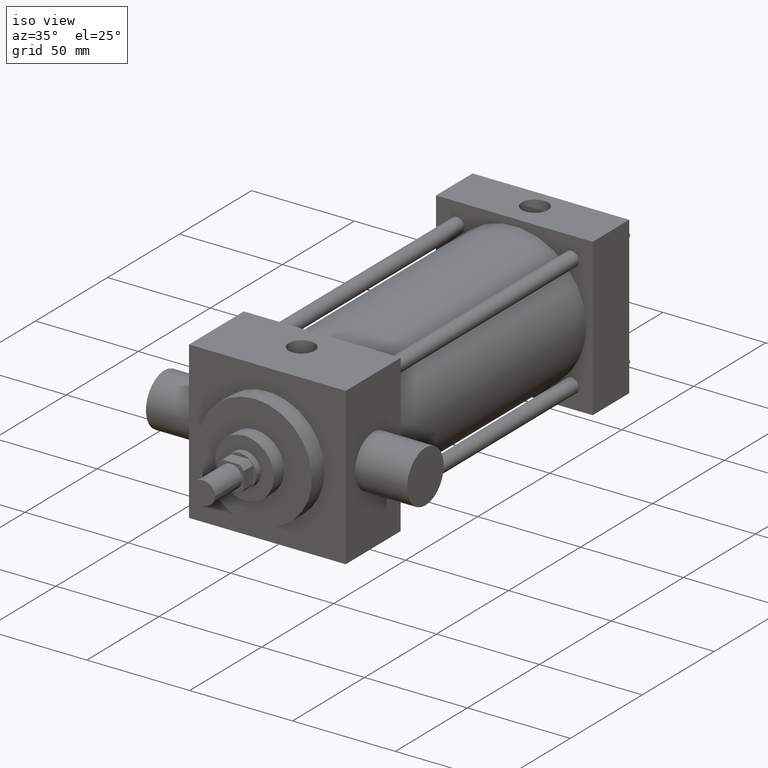
[diagram: clean part render]
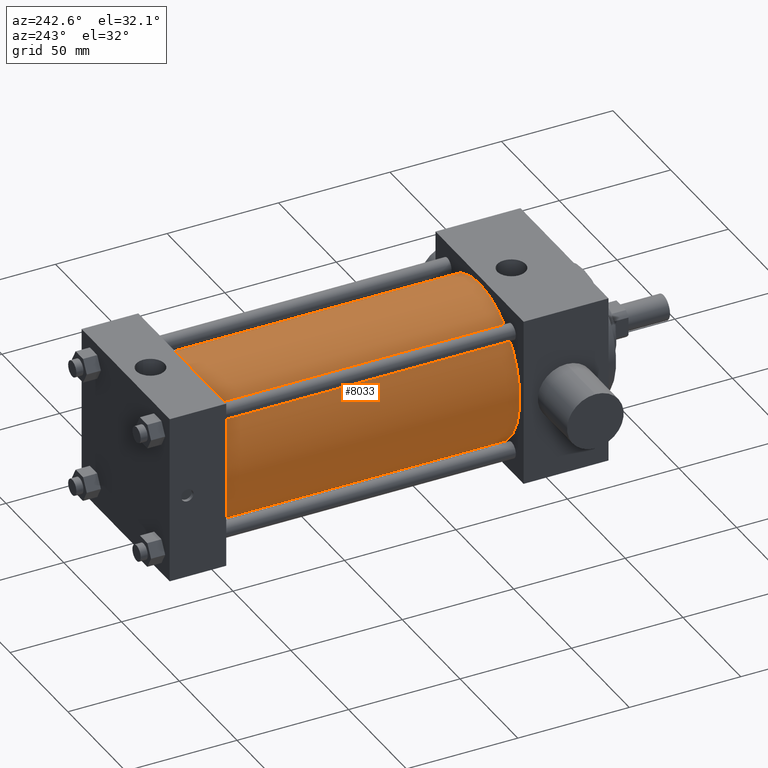
[diagram: tour spotlight — one face highlighted and labeled with its STEP entity id]
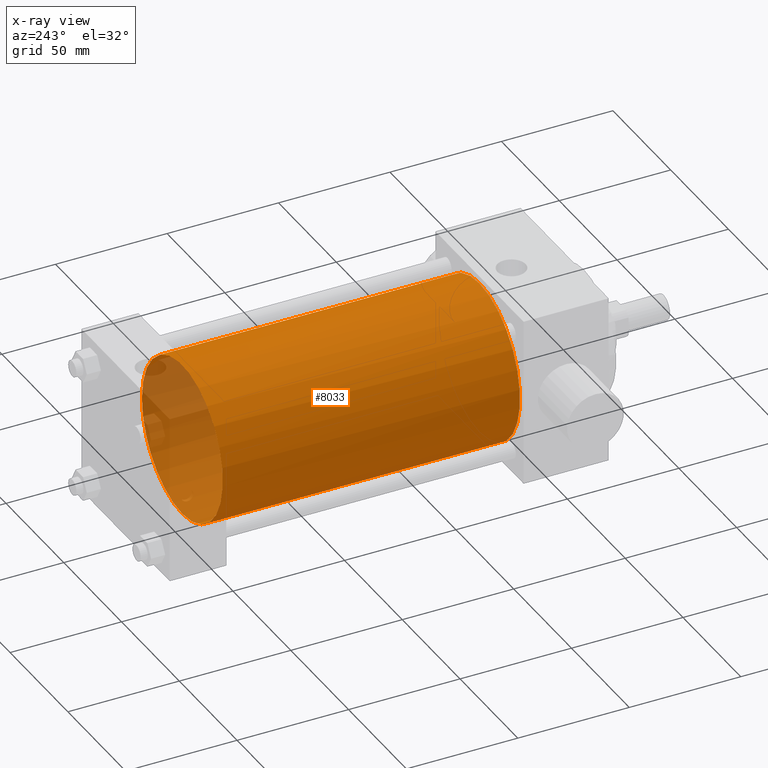
[diagram: x-ray of the same camera — body ghosted, this tour face saturated]
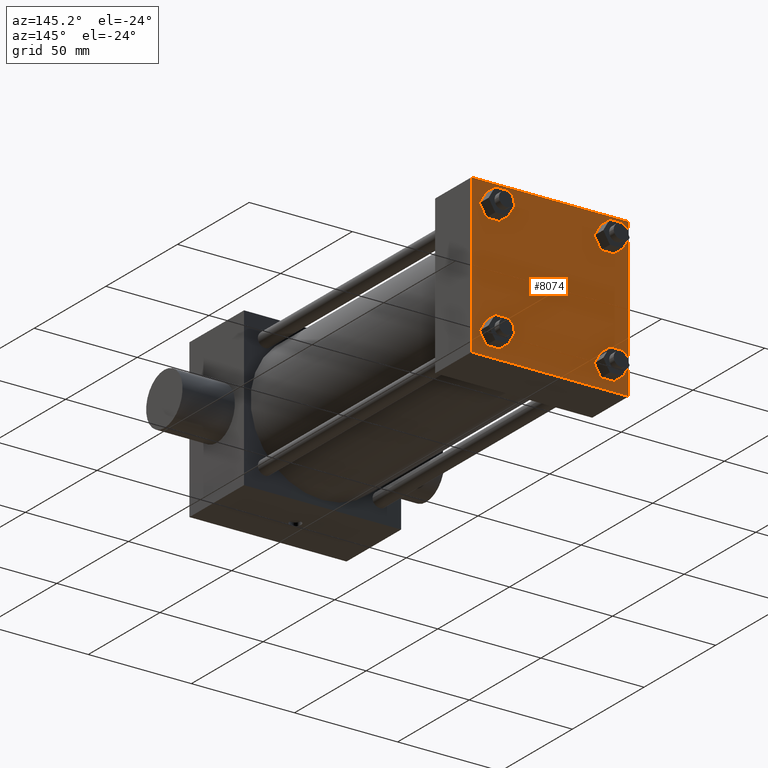
[diagram: tour spotlight — one face highlighted and labeled with its STEP entity id]
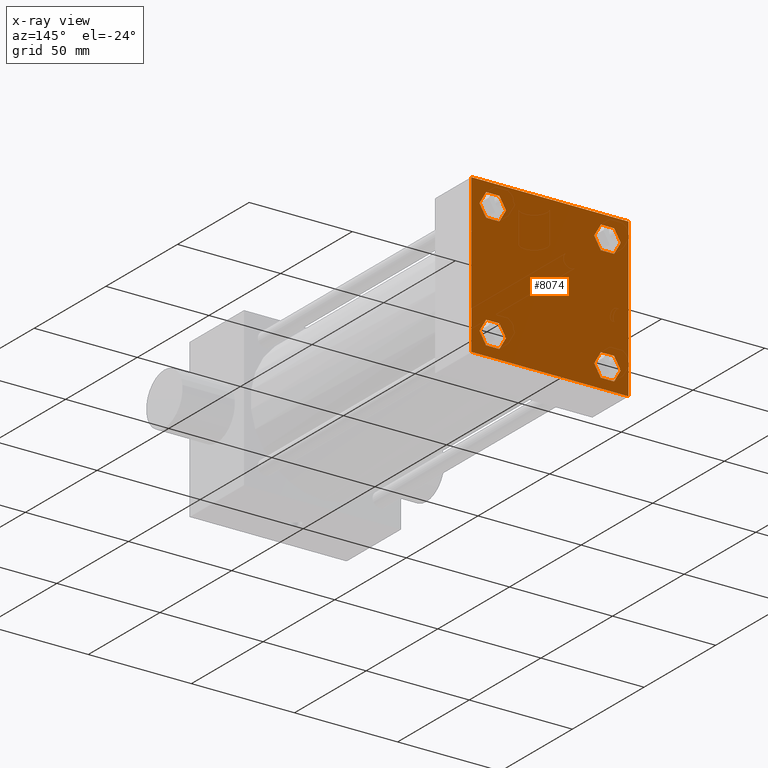
[diagram: x-ray of the same camera — body ghosted, this tour face saturated]
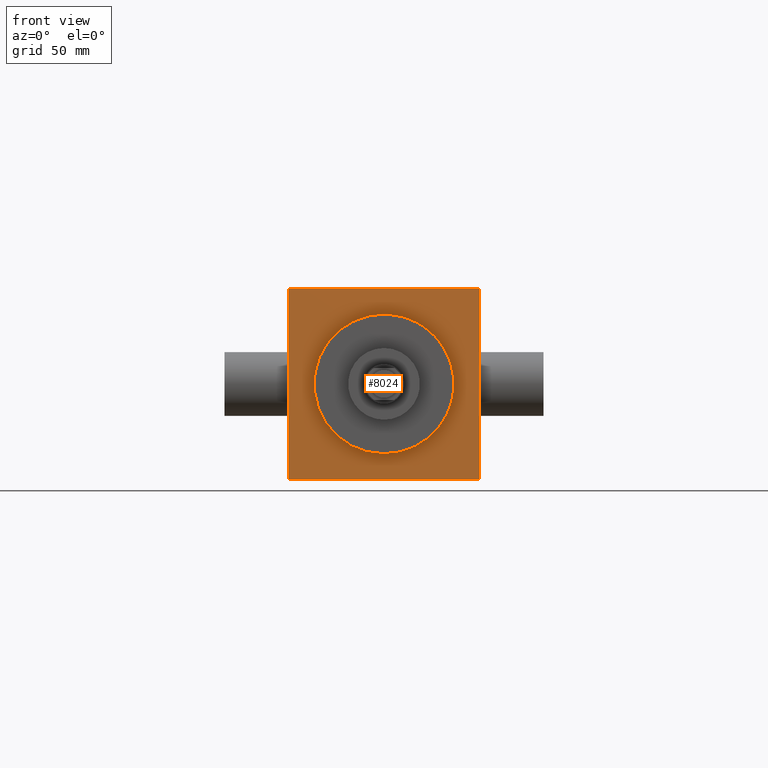
[diagram: tour spotlight — one face highlighted and labeled with its STEP entity id]
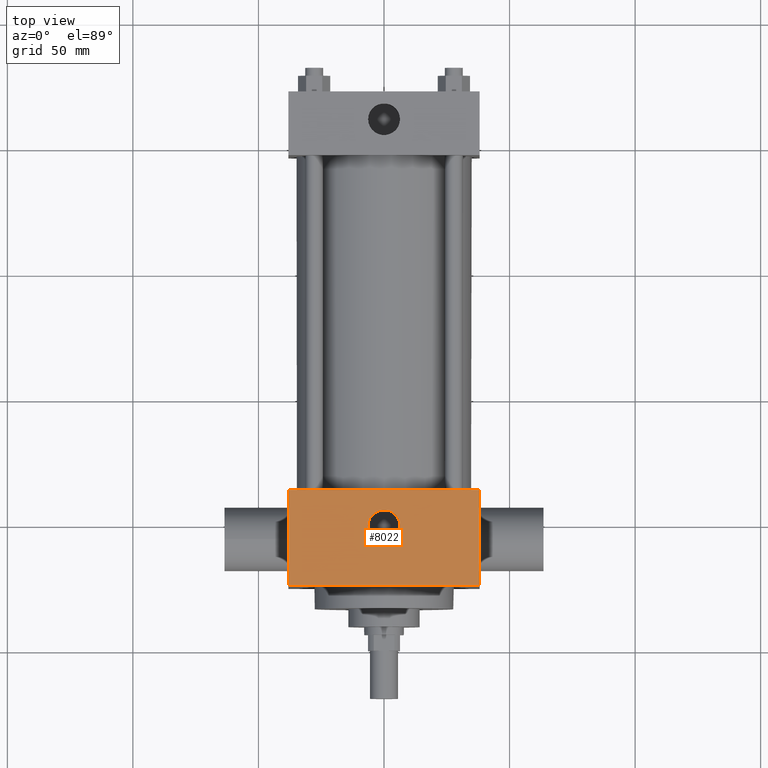
[diagram: tour spotlight — one face highlighted and labeled with its STEP entity id]
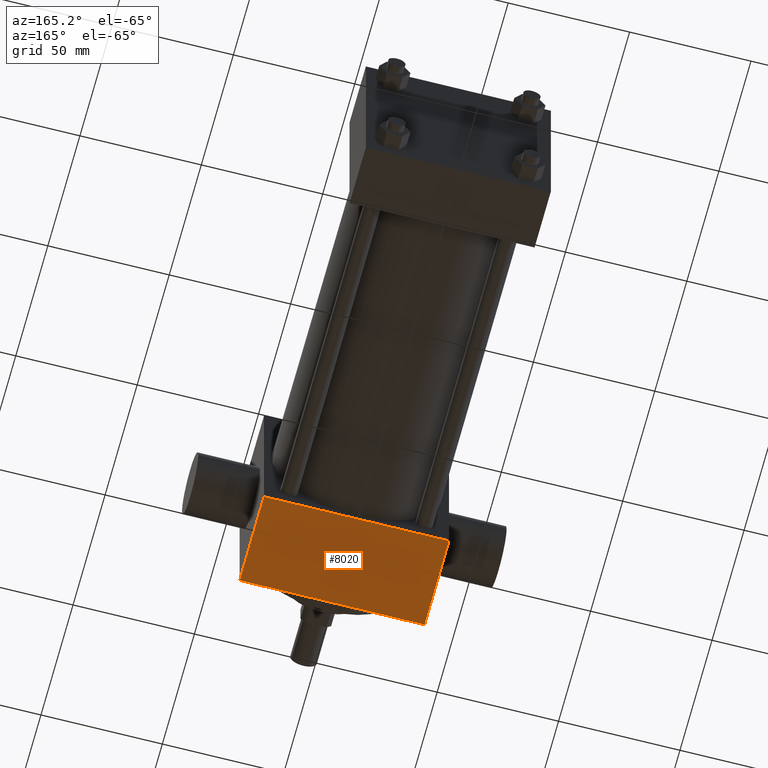
[diagram: tour spotlight — one face highlighted and labeled with its STEP entity id]
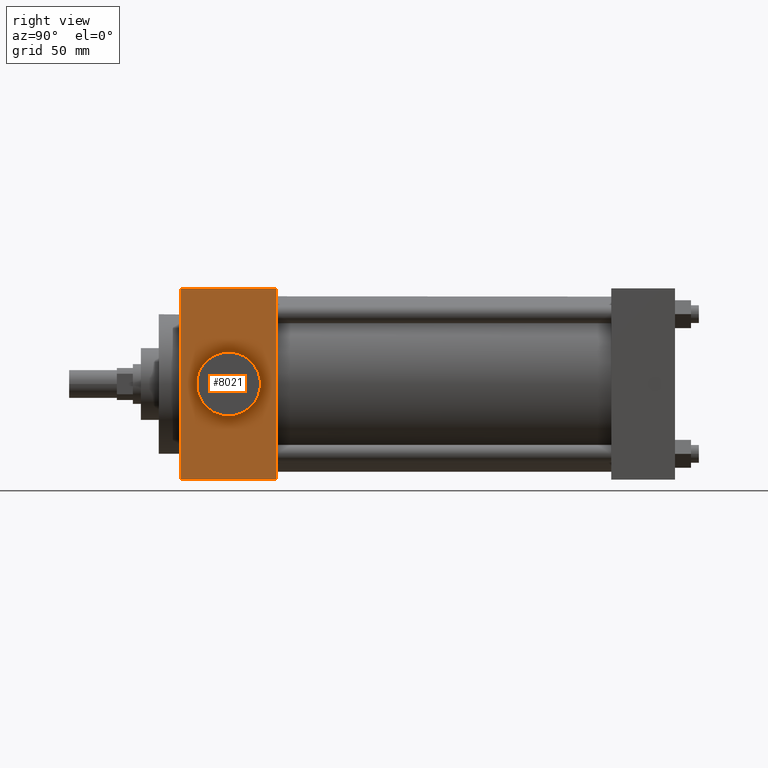
[diagram: tour spotlight — one face highlighted and labeled with its STEP entity id]
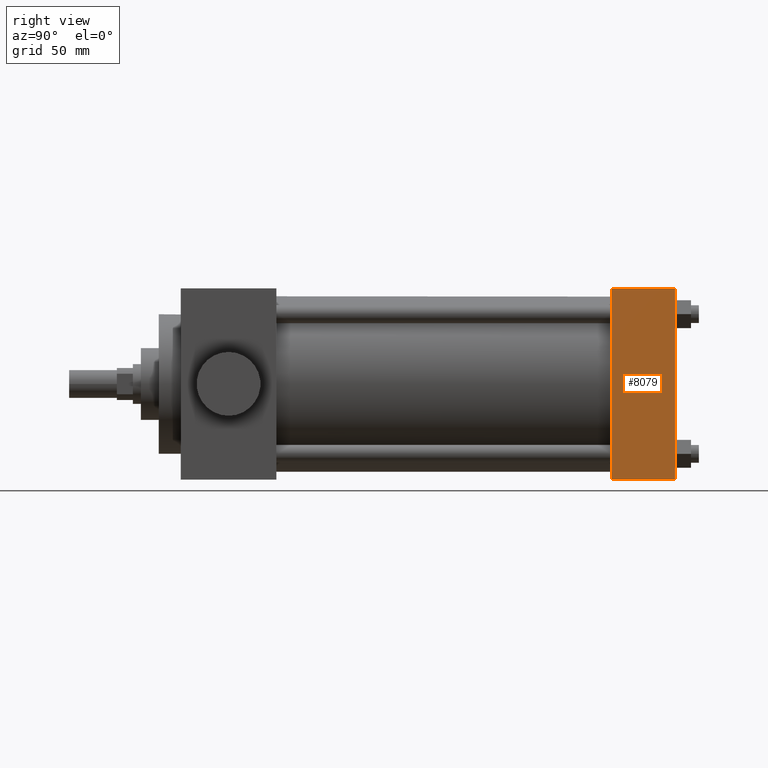
[diagram: tour spotlight — one face highlighted and labeled with its STEP entity id]
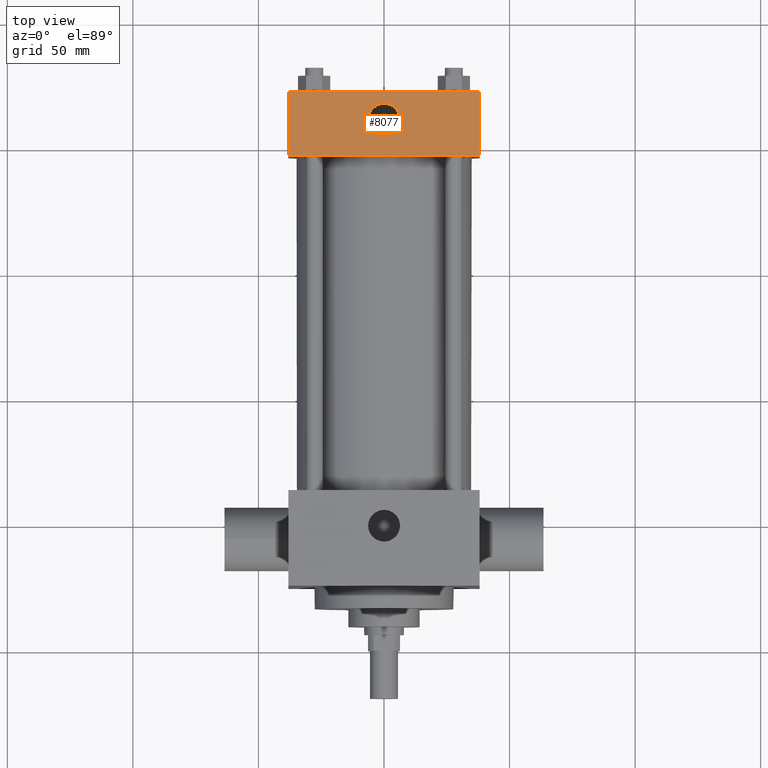
[diagram: tour spotlight — one face highlighted and labeled with its STEP entity id]
A machine part: a face-by-face anatomy tour. The part has 86 B-rep faces; the first image is the clean iso view, then the 8 largest visible faces are spotlighted one at a time (largest first), each with its STEP entity span.

Face 1 — auxiliary view, entity #8033. An x-ray twin of the same camera follows (body ghosted, this face saturated) — the face is partly hidden behind the body. In plain terms, the highlighted cylindrical surface (bore or boss wall) has radius 34.925 mm, axis along (0, -1, 0).
Definition (entity closure, byte-faithful):
#579=EDGE_CURVE('',#585,#585,#580,.T.);
#580=CIRCLE('',#581,3.492500000E+001);
#581=AXIS2_PLACEMENT_3D('',#582,#583,#584);
#582=CARTESIAN_POINT('',(0.000000000E+000,6.350000000E+001,0.000000000E+000));
#583=DIRECTION('',(0.0E+000,-1.0E+000,0.0E+000));
#584=DIRECTION('',(0.0E+000,0.0E+000,-1.0E+000));
#585=VERTEX_POINT('',#586);
#586=CARTESIAN_POINT('',(0.000000000E+000,6.350000000E+001,-3.492500000E+001));
#1344=FACE_OUTER_BOUND('',#1346,.T.);
#1345=FACE_BOUND('',#1347,.T.);
#1346=EDGE_LOOP('',(#1348));
#1347=EDGE_LOOP('',(#1357));
#1348=ORIENTED_EDGE('',*,*,#1349,.F.);
#1349=EDGE_CURVE('',#1355,#1355,#1350,.T.);
#1350=CIRCLE('',#1351,3.492500000E+001);
#1351=AXIS2_PLACEMENT_3D('',#1352,#1353,#1354);
#1352=CARTESIAN_POINT('',(0.000000000E+000,1.968500000E+002,0.000000000E+000));
#1353=DIRECTION('',(0.0E+000,1.0E+000,0.0E+000));
#1354=DIRECTION('',(1.0E+000,0.0E+000,0.0E+000));
#1355=VERTEX_POINT('',#1356);
#1356=CARTESIAN_POINT('',(3.492500000E+001,1.968500000E+002,0.000000000E+000));
#1357=ORIENTED_EDGE('',*,*,#579,.F.);
#1358=CYLINDRICAL_SURFACE('',#1359,3.492500000E+001);
#1359=AXIS2_PLACEMENT_3D('',#1360,#1361,#1362);
#1360=CARTESIAN_POINT('',(0.000000000E+000,1.968500000E+002,0.000000000E+000));
#1361=DIRECTION('',(0.0E+000,-1.0E+000,0.0E+000));
#1362=DIRECTION('',(0.0E+000,0.0E+000,-1.0E+000));
#8033=ADVANCED_FACE('',(#1344,#1345),#1358,.T.);

Face 2 — auxiliary view, entity #8074. An x-ray twin of the same camera follows (body ghosted, this face saturated) — the face is partly hidden behind the body. In plain terms, the highlighted planar face has unit normal (0, 1, 0).
Definition (entity closure, byte-faithful):
#2411=FACE_OUTER_BOUND('',#2416,.T.);
#2412=FACE_BOUND('',#2417,.T.);
#2413=FACE_BOUND('',#2418,.T.);
#2414=FACE_BOUND('',#2419,.T.);
#2415=FACE_BOUND('',#2420,.T.);
#2416=EDGE_LOOP('',(#2421,#2422,#2423,#2424,#2425,#2426));
#2417=EDGE_LOOP('',(#2469,#2470,#2471,#2472,#2473,#2474));
#2418=EDGE_LOOP('',(#2517,#2518,#2519,#2520));
#2419=EDGE_LOOP('',(#2549,#2550,#2551,#2552,#2553,#2554));
#2420=EDGE_LOOP('',(#2597,#2598,#2599,#2600,#2601,#2602));
#2421=ORIENTED_EDGE('',*,*,#2427,.T.);
#2422=ORIENTED_EDGE('',*,*,#2436,.T.);
#2423=ORIENTED_EDGE('',*,*,#2443,.T.);
#2424=ORIENTED_EDGE('',*,*,#2450,.T.);
#2425=ORIENTED_EDGE('',*,*,#2457,.T.);
#2426=ORIENTED_EDGE('',*,*,#2464,.T.);
#2427=EDGE_CURVE('',#2432,#2433,#2428,.T.);
#2428=LINE('',#2429,#2430);
#2429=CARTESIAN_POINT('',(-3.102090653E+001,2.222500000E+002,3.336924574E+001));
#2430=VECTOR('',#2431,1.0E+000);
#2431=DIRECTION('',(-5.0E-001,0.0E+000,-8.66025403784439E-001));
#2432=VERTEX_POINT('',#2434);
#2433=VERTEX_POINT('',#2435);
#2434=CARTESIAN_POINT('',(-3.102090653E+001,2.222500000E+002,3.336924574E+001));
#2435=CARTESIAN_POINT('',(-3.422880323E+001,2.222500000E+002,2.781300000E+001));
#2436=EDGE_CURVE('',#2433,#2441,#2437,.T.);
#2437=LINE('',#2438,#2439);
#2438=CARTESIAN_POINT('',(-3.422880323E+001,2.222500000E+002,2.781300000E+001));
#2439=VECTOR('',#2440,1.0E+000);
#2440=DIRECTION('',(5.0E-001,0.0E+000,-8.66025403784439E-001));
#2441=VERTEX_POINT('',#2442);
#2442=CARTESIAN_POINT('',(-3.102090653E+001,2.222500000E+002,2.225675426E+001));
#2443=EDGE_CURVE('',#2441,#2448,#2444,.T.);
#2444=LINE('',#2445,#2446);
#2445=CARTESIAN_POINT('',(-3.102090653E+001,2.222500000E+002,2.225675426E+001));
#2446=VECTOR('',#2447,1.0E+000);
#2447=DIRECTION('',(1.0E+000,0.0E+000,0.0E+000));
#2448=VERTEX_POINT('',#2449);
#2449=CARTESIAN_POINT('',(-2.460509347E+001,2.222500000E+002,2.225675426E+001));
#2450=EDGE_CURVE('',#2448,#2455,#2451,.T.);
#2451=LINE('',#2452,#2453);
#2452=CARTESIAN_POINT('',(-2.460509347E+001,2.222500000E+002,2.225675426E+001));
#2453=VECTOR('',#2454,1.0E+000);
#2454=DIRECTION('',(5.0E-001,0.0E+000,8.66025403784439E-001));
#2455=VERTEX_POINT('',#2456);
#2456=CARTESIAN_POINT('',(-2.139719677E+001,2.222500000E+002,2.781300000E+001));
#2457=EDGE_CURVE('',#2455,#2462,#2458,.T.);
#2458=LINE('',#2459,#2460);
#2459=CARTESIAN_POINT('',(-2.139719677E+001,2.222500000E+002,2.781300000E+001));
#2460=VECTOR('',#2461,1.0E+000);
#2461=DIRECTION('',(-5.0E-001,0.0E+000,8.66025403784439E-001));
#2462=VERTEX_POINT('',#2463);
#2463=CARTESIAN_POINT('',(-2.460509347E+001,2.222500000E+002,3.336924574E+001));
#2464=EDGE_CURVE('',#2462,#2432,#2465,.T.);
#2465=LINE('',#2466,#2467);
#2466=CARTESIAN_POINT('',(-2.460509347E+001,2.222500000E+002,3.336924574E+001));
#2467=VECTOR('',#2468,1.0E+000);
#2468=DIRECTION('',(-1.0E+000,0.0E+000,0.0E+000));
#2469=ORIENTED_EDGE('',*,*,#2475,.T.);
#2470=ORIENTED_EDGE('',*,*,#2484,.T.);
#2471=ORIENTED_EDGE('',*,*,#2491,.T.);
#2472=ORIENTED_EDGE('',*,*,#2498,.T.);
#2473=ORIENTED_EDGE('',*,*,#2505,.T.);
#2474=ORIENTED_EDGE('',*,*,#2512,.T.);
#2475=EDGE_CURVE('',#2480,#2481,#2476,.T.);
#2476=LINE('',#2477,#2478);
#2477=CARTESIAN_POINT('',(2.460509347E+001,2.222500000E+002,-2.225675426E+001));
#2478=VECTOR('',#2479,1.0E+000);
#2479=DIRECTION('',(-5.0E-001,0.0E+000,-8.66025403784439E-001));
#2480=VERTEX_POINT('',#2482);
#2481=VERTEX_POINT('',#2483);
#2482=CARTESIAN_POINT('',(2.460509347E+001,2.222500000E+002,-2.225675426E+001));
#2483=CARTESIAN_POINT('',(2.139719677E+001,2.222500000E+002,-2.781300000E+001));
#2484=EDGE_CURVE('',#2481,#2489,#2485,.T.);
#2485=LINE('',#2486,#2487);
#2486=CARTESIAN_POINT('',(2.139719677E+001,2.222500000E+002,-2.781300000E+001));
#2487=VECTOR('',#2488,1.0E+000);
#2488=DIRECTION('',(5.0E-001,0.0E+000,-8.66025403784439E-001));
#2489=VERTEX_POINT('',#2490);
#2490=CARTESIAN_POINT('',(2.460509347E+001,2.222500000E+002,-3.336924574E+001));
#2491=EDGE_CURVE('',#2489,#2496,#2492,.T.);
#2492=LINE('',#2493,#2494);
#2493=CARTESIAN_POINT('',(2.460509347E+001,2.222500000E+002,-3.336924574E+001));
#2494=VECTOR('',#2495,1.0E+000);
#2495=DIRECTION('',(1.0E+000,0.0E+000,0.0E+000));
#2496=VERTEX_POINT('',#2497);
#2497=CARTESIAN_POINT('',(3.102090653E+001,2.222500000E+002,-3.336924574E+001));
#2498=EDGE_CURVE('',#2496,#2503,#2499,.T.);
#2499=LINE('',#2500,#2501);
#2500=CARTESIAN_POINT('',(3.102090653E+001,2.222500000E+002,-3.336924574E+001));
#2501=VECTOR('',#2502,1.0E+000);
#2502=DIRECTION('',(5.0E-001,0.0E+000,8.66025403784439E-001));
#2503=VERTEX_POINT('',#2504);
#2504=CARTESIAN_POINT('',(3.422880323E+001,2.222500000E+002,-2.781300000E+001));
#2505=EDGE_CURVE('',#2503,#2510,#2506,.T.);
#2506=LINE('',#2507,#2508);
#2507=CARTESIAN_POINT('',(3.422880323E+001,2.222500000E+002,-2.781300000E+001));
#2508=VECTOR('',#2509,1.0E+000);
#2509=DIRECTION('',(-5.0E-001,0.0E+000,8.66025403784439E-001));
#2510=VERTEX_POINT('',#2511);
#2511=CARTESIAN_POINT('',(3.102090653E+001,2.222500000E+002,-2.225675426E+001));
#2512=EDGE_CURVE('',#2510,#2480,#2513,.T.);
#2513=LINE('',#2514,#2515);
#2514=CARTESIAN_POINT('',(3.102090653E+001,2.222500000E+002,-2.225675426E+001));
#2515=VECTOR('',#2516,1.0E+000);
#2516=DIRECTION('',(-1.0E+000,0.0E+000,0.0E+000));
#2517=ORIENTED_EDGE('',*,*,#2521,.F.);
#2518=ORIENTED_EDGE('',*,*,#2530,.F.);
#2519=ORIENTED_EDGE('',*,*,#2537,.F.);
#2520=ORIENTED_EDGE('',*,*,#2544,.F.);
#2521=EDGE_CURVE('',#2526,#2527,#2522,.T.);
#2522=LINE('',#2523,#2524);
#2523=CARTESIAN_POINT('',(-3.810000000E+001,2.222500000E+002,-3.810000000E+001));
#2524=VECTOR('',#2525,1.0E+000);
#2525=DIRECTION('',(1.0E+000,0.0E+000,0.0E+000));
#2526=VERTEX_POINT('',#2528);
#2527=VERTEX_POINT('',#2529);
#2528=CARTESIAN_POINT('',(-3.810000000E+001,2.222500000E+002,-3.810000000E+001));
#2529=CARTESIAN_POINT('',(3.810000000E+001,2.222500000E+002,-3.810000000E+001));
#2530=EDGE_CURVE('',#2535,#2526,#2531,.T.);
#2531=LINE('',#2532,#2533);
#2532=CARTESIAN_POINT('',(-3.810000000E+001,2.222500000E+002,3.810000000E+001));
#2533=VECTOR('',#2534,1.0E+000);
#2534=DIRECTION('',(0.0E+000,0.0E+000,-1.0E+000));
#2535=VERTEX_POINT('',#2536);
#2536=CARTESIAN_POINT('',(-3.810000000E+001,2.222500000E+002,3.810000000E+001));
#2537=EDGE_CURVE('',#2542,#2535,#2538,.T.);
#2538=LINE('',#2539,#2540);
#2539=CARTESIAN_POINT('',(3.810000000E+001,2.222500000E+002,3.810000000E+001));
#2540=VECTOR('',#2541,1.0E+000);
#2541=DIRECTION('',(-1.0E+000,0.0E+000,0.0E+000));
#2542=VERTEX_POINT('',#2543);
#2543=CARTESIAN_POINT('',(3.810000000E+001,2.222500000E+002,3.810000000E+001));
#2544=EDGE_CURVE('',#2527,#2542,#2545,.T.);
#2545=LINE('',#2546,#2547);
#2546=CARTESIAN_POINT('',(3.810000000E+001,2.222500000E+002,-3.810000000E+001));
#2547=VECTOR('',#2548,1.0E+000);
#2548=DIRECTION('',(0.0E+000,0.0E+000,1.0E+000));
#2549=ORIENTED_EDGE('',*,*,#2555,.T.);
#2550=ORIENTED_EDGE('',*,*,#2564,.T.);
#2551=ORIENTED_EDGE('',*,*,#2571,.T.);
#2552=ORIENTED_EDGE('',*,*,#2578,.T.);
#2553=ORIENTED_EDGE('',*,*,#2585,.T.);
#2554=ORIENTED_EDGE('',*,*,#2592,.T.);
#2555=EDGE_CURVE('',#2560,#2561,#2556,.T.);
#2556=LINE('',#2557,#2558);
#2557=CARTESIAN_POINT('',(-3.102090653E+001,2.222500000E+002,-2.225675426E+001));
#2558=VECTOR('',#2559,1.0E+000);
#2559=DIRECTION('',(-5.0E-001,0.0E+000,-8.66025403784439E-001));
#2560=VERTEX_POINT('',#2562);
#2561=VERTEX_POINT('',#2563);
#2562=CARTESIAN_POINT('',(-3.102090653E+001,2.222500000E+002,-2.225675426E+001));
#2563=CARTESIAN_POINT('',(-3.422880323E+001,2.222500000E+002,-2.781300000E+001));
#2564=EDGE_CURVE('',#2561,#2569,#2565,.T.);
#2565=LINE('',#2566,#2567);
#2566=CARTESIAN_POINT('',(-3.422880323E+001,2.222500000E+002,-2.781300000E+001));
#2567=VECTOR('',#2568,1.0E+000);
#2568=DIRECTION('',(5.0E-001,0.0E+000,-8.66025403784439E-001));
#2569=VERTEX_POINT('',#2570);
#2570=CARTESIAN_POINT('',(-3.102090653E+001,2.222500000E+002,-3.336924574E+001));
#2571=EDGE_CURVE('',#2569,#2576,#2572,.T.);
#2572=LINE('',#2573,#2574);
#2573=CARTESIAN_POINT('',(-3.102090653E+001,2.222500000E+002,-3.336924574E+001));
#2574=VECTOR('',#2575,1.0E+000);
#2575=DIRECTION('',(1.0E+000,0.0E+000,0.0E+000));
#2576=VERTEX_POINT('',#2577);
#2577=CARTESIAN_POINT('',(-2.460509347E+001,2.222500000E+002,-3.336924574E+001));
#2578=EDGE_CURVE('',#2576,#2583,#2579,.T.);
#2579=LINE('',#2580,#2581);
#2580=CARTESIAN_POINT('',(-2.460509347E+001,2.222500000E+002,-3.336924574E+001));
#2581=VECTOR('',#2582,1.0E+000);
#2582=DIRECTION('',(5.0E-001,0.0E+000,8.66025403784439E-001));
#2583=VERTEX_POINT('',#2584);
#2584=CARTESIAN_POINT('',(-2.139719677E+001,2.222500000E+002,-2.781300000E+001));
#2585=EDGE_CURVE('',#2583,#2590,#2586,.T.);
#2586=LINE('',#2587,#2588);
#2587=CARTESIAN_POINT('',(-2.139719677E+001,2.222500000E+002,-2.781300000E+001));
#2588=VECTOR('',#2589,1.0E+000);
#2589=DIRECTION('',(-5.0E-001,0.0E+000,8.66025403784439E-001));
#2590=VERTEX_POINT('',#2591);
#2591=CARTESIAN_POINT('',(-2.460509347E+001,2.222500000E+002,-2.225675426E+001));
#2592=EDGE_CURVE('',#2590,#2560,#2593,.T.);
#2593=LINE('',#2594,#2595);
#2594=CARTESIAN_POINT('',(-2.460509347E+001,2.222500000E+002,-2.225675426E+001));
#2595=VECTOR('',#2596,1.0E+000);
#2596=DIRECTION('',(-1.0E+000,0.0E+000,0.0E+000));
#2597=ORIENTED_EDGE('',*,*,#2603,.T.);
#2598=ORIENTED_EDGE('',*,*,#2612,.T.);
#2599=ORIENTED_EDGE('',*,*,#2619,.T.);
#2600=ORIENTED_EDGE('',*,*,#2626,.T.);
#2601=ORIENTED_EDGE('',*,*,#2633,.T.);
#2602=ORIENTED_EDGE('',*,*,#2640,.T.);
#2603=EDGE_CURVE('',#2608,#2609,#2604,.T.);
#2604=LINE('',#2605,#2606);
#2605=CARTESIAN_POINT('',(2.460509347E+001,2.222500000E+002,3.336924574E+001));
#2606=VECTOR('',#2607,1.0E+000);
#2607=DIRECTION('',(-5.0E-001,0.0E+000,-8.66025403784439E-001));
#2608=VERTEX_POINT('',#2610);
#2609=VERTEX_POINT('',#2611);
#2610=CARTESIAN_POINT('',(2.460509347E+001,2.222500000E+002,3.336924574E+001));
#2611=CARTESIAN_POINT('',(2.139719677E+001,2.222500000E+002,2.781300000E+001));
#2612=EDGE_CURVE('',#2609,#2617,#2613,.T.);
#2613=LINE('',#2614,#2615);
#2614=CARTESIAN_POINT('',(2.139719677E+001,2.222500000E+002,2.781300000E+001));
#2615=VECTOR('',#2616,1.0E+000);
#2616=DIRECTION('',(5.0E-001,0.0E+000,-8.66025403784439E-001));
#2617=VERTEX_POINT('',#2618);
#2618=CARTESIAN_POINT('',(2.460509347E+001,2.222500000E+002,2.225675426E+001));
#2619=EDGE_CURVE('',#2617,#2624,#2620,.T.);
#2620=LINE('',#2621,#2622);
#2621=CARTESIAN_POINT('',(2.460509347E+001,2.222500000E+002,2.225675426E+001));
#2622=VECTOR('',#2623,1.0E+000);
#2623=DIRECTION('',(1.0E+000,0.0E+000,0.0E+000));
#2624=VERTEX_POINT('',#2625);
#2625=CARTESIAN_POINT('',(3.102090653E+001,2.222500000E+002,2.225675426E+001));
#2626=EDGE_CURVE('',#2624,#2631,#2627,.T.);
#2627=LINE('',#2628,#2629);
#2628=CARTESIAN_POINT('',(3.102090653E+001,2.222500000E+002,2.225675426E+001));
#2629=VECTOR('',#2630,1.0E+000);
#2630=DIRECTION('',(5.0E-001,0.0E+000,8.66025403784439E-001));
#2631=VERTEX_POINT('',#2632);
#2632=CARTESIAN_POINT('',(3.422880323E+001,2.222500000E+002,2.781300000E+001));
#2633=EDGE_CURVE('',#2631,#2638,#2634,.T.);
#2634=LINE('',#2635,#2636);
#2635=CARTESIAN_POINT('',(3.422880323E+001,2.222500000E+002,2.781300000E+001));
#2636=VECTOR('',#2637,1.0E+000);
#2637=DIRECTION('',(-5.0E-001,0.0E+000,8.66025403784439E-001));
#2638=VERTEX_POINT('',#2639);
#2639=CARTESIAN_POINT('',(3.102090653E+001,2.222500000E+002,3.336924574E+001));
#2640=EDGE_CURVE('',#2638,#2608,#2641,.T.);
#2641=LINE('',#2642,#2643);
#2642=CARTESIAN_POINT('',(3.102090653E+001,2.222500000E+002,3.336924574E+001));
#2643=VECTOR('',#2644,1.0E+000);
#2644=DIRECTION('',(-1.0E+000,0.0E+000,0.0E+000));
#2645=PLANE('',#2646);
#2646=AXIS2_PLACEMENT_3D('',#2647,#2648,#2649);
#2647=CARTESIAN_POINT('',(-3.810000000E+001,2.222500000E+002,-3.810000000E+001));
#2648=DIRECTION('',(0.0E+000,1.0E+000,0.0E+000));
#2649=DIRECTION('',(0.0E+000,0.0E+000,1.0E+000));
#8074=ADVANCED_FACE('',(#2411,#2412,#2413,#2414,#2415),#2645,.T.);

Face 3 — front view, entity #8024. In plain terms, the highlighted planar face has unit normal (0, -1, 0).
Definition (entity closure, byte-faithful):
#451=EDGE_CURVE('',#457,#457,#452,.T.);
#452=CIRCLE('',#453,2.777490000E+001);
#453=AXIS2_PLACEMENT_3D('',#454,#455,#456);
#454=CARTESIAN_POINT('',(0.000000000E+000,2.540000000E+001,0.000000000E+000));
#455=DIRECTION('',(0.0E+000,1.0E+000,0.0E+000));
#456=DIRECTION('',(1.0E+000,0.0E+000,0.0E+000));
#457=VERTEX_POINT('',#458);
#458=CARTESIAN_POINT('',(2.777490000E+001,2.540000000E+001,0.000000000E+000));
#614=VERTEX_POINT('',#615);
#615=CARTESIAN_POINT('',(3.810000000E+001,2.540000000E+001,-3.810000000E+001));
#616=EDGE_CURVE('',#621,#614,#617,.T.);
#617=LINE('',#618,#619);
#618=CARTESIAN_POINT('',(-3.810000000E+001,2.540000000E+001,-3.810000000E+001));
#619=VECTOR('',#620,1.0E+000);
#620=DIRECTION('',(1.0E+000,0.0E+000,0.0E+000));
#621=VERTEX_POINT('',#622);
#622=CARTESIAN_POINT('',(-3.810000000E+001,2.540000000E+001,-3.810000000E+001));
#655=VERTEX_POINT('',#656);
#656=CARTESIAN_POINT('',(3.810000000E+001,2.540000000E+001,3.810000000E+001));
#657=EDGE_CURVE('',#614,#655,#658,.T.);
#658=LINE('',#659,#660);
#659=CARTESIAN_POINT('',(3.810000000E+001,2.540000000E+001,-3.810000000E+001));
#660=VECTOR('',#661,1.0E+000);
#661=DIRECTION('',(0.0E+000,0.0E+000,1.0E+000));
#689=VERTEX_POINT('',#690);
#690=CARTESIAN_POINT('',(-3.810000000E+001,2.540000000E+001,3.810000000E+001));
#691=EDGE_CURVE('',#655,#689,#692,.T.);
#692=LINE('',#693,#694);
#693=CARTESIAN_POINT('',(3.810000000E+001,2.540000000E+001,3.810000000E+001));
#694=VECTOR('',#695,1.0E+000);
#695=DIRECTION('',(-1.0E+000,0.0E+000,0.0E+000));
#718=EDGE_CURVE('',#689,#621,#719,.T.);
#719=LINE('',#720,#721);
#720=CARTESIAN_POINT('',(-3.810000000E+001,2.540000000E+001,3.810000000E+001));
#721=VECTOR('',#722,1.0E+000);
#722=DIRECTION('',(0.0E+000,0.0E+000,-1.0E+000));
#728=FACE_OUTER_BOUND('',#730,.T.);
#729=FACE_BOUND('',#731,.T.);
#730=EDGE_LOOP('',(#732));
#731=EDGE_LOOP('',(#733,#734,#735,#736));
#732=ORIENTED_EDGE('',*,*,#451,.T.);
#733=ORIENTED_EDGE('',*,*,#616,.T.);
#734=ORIENTED_EDGE('',*,*,#657,.T.);
#735=ORIENTED_EDGE('',*,*,#691,.T.);
#736=ORIENTED_EDGE('',*,*,#718,.T.);
#737=PLANE('',#738);
#738=AXIS2_PLACEMENT_3D('',#739,#740,#741);
#739=CARTESIAN_POINT('',(3.810000000E+001,2.540000000E+001,-3.810000000E+001));
#740=DIRECTION('',(0.0E+000,-1.0E+000,0.0E+000));
#741=DIRECTION('',(0.0E+000,0.0E+000,-1.0E+000));
#8024=ADVANCED_FACE('',(#728,#729),#737,.T.);

Face 4 — top view, entity #8022. In plain terms, the highlighted planar face has unit normal (0, 0, 1).
Definition (entity closure, byte-faithful):
#555=VERTEX_POINT('',#556);
#556=CARTESIAN_POINT('',(-3.810000000E+001,6.350000000E+001,3.810000000E+001));
#557=EDGE_CURVE('',#562,#555,#558,.T.);
#558=LINE('',#559,#560);
#559=CARTESIAN_POINT('',(3.810000000E+001,6.350000000E+001,3.810000000E+001));
#560=VECTOR('',#561,1.0E+000);
#561=DIRECTION('',(-1.0E+000,0.0E+000,0.0E+000));
#562=VERTEX_POINT('',#563);
#563=CARTESIAN_POINT('',(3.810000000E+001,6.350000000E+001,3.810000000E+001));
#650=EDGE_CURVE('',#562,#655,#651,.T.);
#651=LINE('',#652,#653);
#652=CARTESIAN_POINT('',(3.810000000E+001,6.350000000E+001,3.810000000E+001));
#653=VECTOR('',#654,1.0E+000);
#654=DIRECTION('',(0.0E+000,-1.0E+000,0.0E+000));
#655=VERTEX_POINT('',#656);
#656=CARTESIAN_POINT('',(3.810000000E+001,2.540000000E+001,3.810000000E+001));
#667=FACE_OUTER_BOUND('',#669,.T.);
#668=FACE_BOUND('',#670,.T.);
#669=EDGE_LOOP('',(#671));
#670=EDGE_LOOP('',(#680,#681,#682,#683));
#671=ORIENTED_EDGE('',*,*,#672,.T.);
#672=EDGE_CURVE('',#678,#678,#673,.T.);
#673=CIRCLE('',#674,6.350000000E+000);
#674=AXIS2_PLACEMENT_3D('',#675,#676,#677);
#675=CARTESIAN_POINT('',(0.000000000E+000,4.921250000E+001,3.810000000E+001));
#676=DIRECTION('',(0.0E+000,0.0E+000,-1.0E+000));
#677=DIRECTION('',(-1.0E+000,0.0E+000,0.0E+000));
#678=VERTEX_POINT('',#679);
#679=CARTESIAN_POINT('',(-6.350000000E+000,4.921250000E+001,3.810000000E+001));
#680=ORIENTED_EDGE('',*,*,#684,.T.);
#681=ORIENTED_EDGE('',*,*,#691,.F.);
#682=ORIENTED_EDGE('',*,*,#650,.F.);
#683=ORIENTED_EDGE('',*,*,#557,.T.);
#684=EDGE_CURVE('',#555,#689,#685,.T.);
#685=LINE('',#686,#687);
#686=CARTESIAN_POINT('',(-3.810000000E+001,6.350000000E+001,3.810000000E+001));
#687=VECTOR('',#688,1.0E+000);
#688=DIRECTION('',(0.0E+000,-1.0E+000,0.0E+000));
#689=VERTEX_POINT('',#690);
#690=CARTESIAN_POINT('',(-3.810000000E+001,2.540000000E+001,3.810000000E+001));
#691=EDGE_CURVE('',#655,#689,#692,.T.);
#692=LINE('',#693,#694);
#693=CARTESIAN_POINT('',(3.810000000E+001,2.540000000E+001,3.810000000E+001));
#694=VECTOR('',#695,1.0E+000);
#695=DIRECTION('',(-1.0E+000,0.0E+000,0.0E+000));
#696=PLANE('',#697);
#697=AXIS2_PLACEMENT_3D('',#698,#699,#700);
#698=CARTESIAN_POINT('',(3.810000000E+001,6.350000000E+001,3.810000000E+001));
#699=DIRECTION('',(0.0E+000,0.0E+000,1.0E+000));
#700=DIRECTION('',(1.0E+000,0.0E+000,0.0E+000));
#8022=ADVANCED_FACE('',(#667,#668),#696,.T.);

Face 5 — auxiliary view, entity #8020. In plain terms, the highlighted planar face has unit normal (0, 0, -1).
Definition (entity closure, byte-faithful):
#541=EDGE_CURVE('',#546,#547,#542,.T.);
#542=LINE('',#543,#544);
#543=CARTESIAN_POINT('',(-3.810000000E+001,6.350000000E+001,-3.810000000E+001));
#544=VECTOR('',#545,1.0E+000);
#545=DIRECTION('',(1.0E+000,0.0E+000,0.0E+000));
#546=VERTEX_POINT('',#548);
#547=VERTEX_POINT('',#549);
#548=CARTESIAN_POINT('',(-3.810000000E+001,6.350000000E+001,-3.810000000E+001));
#549=CARTESIAN_POINT('',(3.810000000E+001,6.350000000E+001,-3.810000000E+001));
#592=FACE_OUTER_BOUND('',#594,.T.);
#593=FACE_BOUND('',#595,.T.);
#594=EDGE_LOOP('',(#596));
#595=EDGE_LOOP('',(#605,#606,#607,#608));
#596=ORIENTED_EDGE('',*,*,#597,.T.);
#597=EDGE_CURVE('',#603,#603,#598,.T.);
#598=CIRCLE('',#599,2.778125000E+000);
#599=AXIS2_PLACEMENT_3D('',#600,#601,#602);
#600=CARTESIAN_POINT('',(0.000000000E+000,4.445000000E+001,-3.810000000E+001));
#601=DIRECTION('',(0.0E+000,0.0E+000,1.0E+000));
#602=DIRECTION('',(0.0E+000,1.0E+000,0.0E+000));
#603=VERTEX_POINT('',#604);
#604=CARTESIAN_POINT('',(0.000000000E+000,4.722812500E+001,-3.810000000E+001));
#605=ORIENTED_EDGE('',*,*,#609,.T.);
#606=ORIENTED_EDGE('',*,*,#616,.F.);
#607=ORIENTED_EDGE('',*,*,#623,.F.);
#608=ORIENTED_EDGE('',*,*,#541,.T.);
#609=EDGE_CURVE('',#547,#614,#610,.T.);
#610=LINE('',#611,#612);
#611=CARTESIAN_POINT('',(3.810000000E+001,6.350000000E+001,-3.810000000E+001));
#612=VECTOR('',#613,1.0E+000);
#613=DIRECTION('',(0.0E+000,-1.0E+000,0.0E+000));
#614=VERTEX_POINT('',#615);
#615=CARTESIAN_POINT('',(3.810000000E+001,2.540000000E+001,-3.810000000E+001));
#616=EDGE_CURVE('',#621,#614,#617,.T.);
#617=LINE('',#618,#619);
#618=CARTESIAN_POINT('',(-3.810000000E+001,2.540000000E+001,-3.810000000E+001));
#619=VECTOR('',#620,1.0E+000);
#620=DIRECTION('',(1.0E+000,0.0E+000,0.0E+000));
#621=VERTEX_POINT('',#622);
#622=CARTESIAN_POINT('',(-3.810000000E+001,2.540000000E+001,-3.810000000E+001));
#623=EDGE_CURVE('',#546,#621,#624,.T.);
#624=LINE('',#625,#626);
#625=CARTESIAN_POINT('',(-3.810000000E+001,6.350000000E+001,-3.810000000E+001));
#626=VECTOR('',#627,1.0E+000);
#627=DIRECTION('',(0.0E+000,-1.0E+000,0.0E+000));
#628=PLANE('',#629);
#629=AXIS2_PLACEMENT_3D('',#630,#631,#632);
#630=CARTESIAN_POINT('',(-3.810000000E+001,6.350000000E+001,-3.810000000E+001));
#631=DIRECTION('',(0.0E+000,0.0E+000,-1.0E+000));
#632=DIRECTION('',(-1.0E+000,0.0E+000,0.0E+000));
#8020=ADVANCED_FACE('',(#592,#593),#628,.T.);

Face 6 — right view, entity #8021. In plain terms, the highlighted planar face has unit normal (1, 0, 0).
Definition (entity closure, byte-faithful):
#547=VERTEX_POINT('',#549);
#549=CARTESIAN_POINT('',(3.810000000E+001,6.350000000E+001,-3.810000000E+001));
#562=VERTEX_POINT('',#563);
#563=CARTESIAN_POINT('',(3.810000000E+001,6.350000000E+001,3.810000000E+001));
#564=EDGE_CURVE('',#547,#562,#565,.T.);
#565=LINE('',#566,#567);
#566=CARTESIAN_POINT('',(3.810000000E+001,6.350000000E+001,-3.810000000E+001));
#567=VECTOR('',#568,1.0E+000);
#568=DIRECTION('',(0.0E+000,0.0E+000,1.0E+000));
#609=EDGE_CURVE('',#547,#614,#610,.T.);
#610=LINE('',#611,#612);
#611=CARTESIAN_POINT('',(3.810000000E+001,6.350000000E+001,-3.810000000E+001));
#612=VECTOR('',#613,1.0E+000);
#613=DIRECTION('',(0.0E+000,-1.0E+000,0.0E+000));
#614=VERTEX_POINT('',#615);
#615=CARTESIAN_POINT('',(3.810000000E+001,2.540000000E+001,-3.810000000E+001));
#633=FACE_OUTER_BOUND('',#635,.T.);
#634=FACE_BOUND('',#636,.T.);
#635=EDGE_LOOP('',(#637));
#636=EDGE_LOOP('',(#646,#647,#648,#649));
#637=ORIENTED_EDGE('',*,*,#638,.T.);
#638=EDGE_CURVE('',#644,#644,#639,.T.);
#639=CIRCLE('',#640,1.270000000E+001);
#640=AXIS2_PLACEMENT_3D('',#641,#642,#643);
#641=CARTESIAN_POINT('',(3.810000000E+001,4.445000000E+001,0.000000000E+000));
#642=DIRECTION('',(-1.0E+000,0.0E+000,0.0E+000));
#643=DIRECTION('',(0.0E+000,0.0E+000,-1.0E+000));
#644=VERTEX_POINT('',#645);
#645=CARTESIAN_POINT('',(3.810000000E+001,4.445000000E+001,-1.270000000E+001));
#646=ORIENTED_EDGE('',*,*,#650,.T.);
#647=ORIENTED_EDGE('',*,*,#657,.F.);
#648=ORIENTED_EDGE('',*,*,#609,.F.);
#649=ORIENTED_EDGE('',*,*,#564,.T.);
#650=EDGE_CURVE('',#562,#655,#651,.T.);
#651=LINE('',#652,#653);
#652=CARTESIAN_POINT('',(3.810000000E+001,6.350000000E+001,3.810000000E+001));
#653=VECTOR('',#654,1.0E+000);
#654=DIRECTION('',(0.0E+000,-1.0E+000,0.0E+000));
#655=VERTEX_POINT('',#656);
#656=CARTESIAN_POINT('',(3.810000000E+001,2.540000000E+001,3.810000000E+001));
#657=EDGE_CURVE('',#614,#655,#658,.T.);
#658=LINE('',#659,#660);
#659=CARTESIAN_POINT('',(3.810000000E+001,2.540000000E+001,-3.810000000E+001));
#660=VECTOR('',#661,1.0E+000);
#661=DIRECTION('',(0.0E+000,0.0E+000,1.0E+000));
#662=PLANE('',#663);
#663=AXIS2_PLACEMENT_3D('',#664,#665,#666);
#664=CARTESIAN_POINT('',(3.810000000E+001,6.350000000E+001,-3.810000000E+001));
#665=DIRECTION('',(1.0E+000,0.0E+000,0.0E+000));
#666=DIRECTION('',(0.0E+000,0.0E+000,-1.0E+000));
#8021=ADVANCED_FACE('',(#633,#634),#662,.T.);

Face 7 — right view, entity #8079. In plain terms, the highlighted planar face has unit normal (1, 0, 0).
Definition (entity closure, byte-faithful):
#2527=VERTEX_POINT('',#2529);
#2529=CARTESIAN_POINT('',(3.810000000E+001,2.222500000E+002,-3.810000000E+001));
#2542=VERTEX_POINT('',#2543);
#2543=CARTESIAN_POINT('',(3.810000000E+001,2.222500000E+002,3.810000000E+001));
#2544=EDGE_CURVE('',#2527,#2542,#2545,.T.);
#2545=LINE('',#2546,#2547);
#2546=CARTESIAN_POINT('',(3.810000000E+001,2.222500000E+002,-3.810000000E+001));
#2547=VECTOR('',#2548,1.0E+000);
#2548=DIRECTION('',(0.0E+000,0.0E+000,1.0E+000));
#2700=VERTEX_POINT('',#2702);
#2702=CARTESIAN_POINT('',(3.810000000E+001,1.968500000E+002,-3.810000000E+001));
#2703=EDGE_CURVE('',#2700,#2708,#2704,.T.);
#2704=LINE('',#2705,#2706);
#2705=CARTESIAN_POINT('',(3.810000000E+001,1.968500000E+002,-3.810000000E+001));
#2706=VECTOR('',#2707,1.0E+000);
#2707=DIRECTION('',(0.0E+000,0.0E+000,1.0E+000));
#2708=VERTEX_POINT('',#2709);
#2709=CARTESIAN_POINT('',(3.810000000E+001,1.968500000E+002,3.810000000E+001));
#2749=EDGE_CURVE('',#2527,#2700,#2750,.T.);
#2750=LINE('',#2751,#2752);
#2751=CARTESIAN_POINT('',(3.810000000E+001,2.222500000E+002,-3.810000000E+001));
#2752=VECTOR('',#2753,1.0E+000);
#2753=DIRECTION('',(0.0E+000,-1.0E+000,0.0E+000));
#2776=EDGE_CURVE('',#2542,#2708,#2777,.T.);
#2777=LINE('',#2778,#2779);
#2778=CARTESIAN_POINT('',(3.810000000E+001,2.222500000E+002,3.810000000E+001));
#2779=VECTOR('',#2780,1.0E+000);
#2780=DIRECTION('',(0.0E+000,-1.0E+000,0.0E+000));
#2822=FACE_OUTER_BOUND('',#2824,.T.);
#2823=FACE_BOUND('',#2825,.T.);
#2824=EDGE_LOOP('',(#2826,#2827,#2828,#2829));
#2825=EDGE_LOOP('',(#2830));
#2826=ORIENTED_EDGE('',*,*,#2703,.F.);
#2827=ORIENTED_EDGE('',*,*,#2749,.F.);
#2828=ORIENTED_EDGE('',*,*,#2544,.T.);
#2829=ORIENTED_EDGE('',*,*,#2776,.T.);
#2830=ORIENTED_EDGE('',*,*,#2831,.T.);
#2831=EDGE_CURVE('',#2837,#2837,#2832,.T.);
#2832=CIRCLE('',#2833,2.778125000E+000);
#2833=AXIS2_PLACEMENT_3D('',#2834,#2835,#2836);
#2834=CARTESIAN_POINT('',(3.810000000E+001,2.143125000E+002,0.000000000E+000));
#2835=DIRECTION('',(-1.0E+000,0.0E+000,0.0E+000));
#2836=DIRECTION('',(0.0E+000,1.0E+000,0.0E+000));
#2837=VERTEX_POINT('',#2838);
#2838=CARTESIAN_POINT('',(3.810000000E+001,2.170906250E+002,0.000000000E+000));
#2839=PLANE('',#2840);
#2840=AXIS2_PLACEMENT_3D('',#2841,#2842,#2843);
#2841=CARTESIAN_POINT('',(3.810000000E+001,2.222500000E+002,-3.810000000E+001));
#2842=DIRECTION('',(1.0E+000,0.0E+000,0.0E+000));
#2843=DIRECTION('',(0.0E+000,0.0E+000,-1.0E+000));
#8079=ADVANCED_FACE('',(#2822,#2823),#2839,.T.);

Face 8 — top view, entity #8077. In plain terms, the highlighted planar face has unit normal (0, 0, 1).
Definition (entity closure, byte-faithful):
#2535=VERTEX_POINT('',#2536);
#2536=CARTESIAN_POINT('',(-3.810000000E+001,2.222500000E+002,3.810000000E+001));
#2537=EDGE_CURVE('',#2542,#2535,#2538,.T.);
#2538=LINE('',#2539,#2540);
#2539=CARTESIAN_POINT('',(3.810000000E+001,2.222500000E+002,3.810000000E+001));
#2540=VECTOR('',#2541,1.0E+000);
#2541=DIRECTION('',(-1.0E+000,0.0E+000,0.0E+000));
#2542=VERTEX_POINT('',#2543);
#2543=CARTESIAN_POINT('',(3.810000000E+001,2.222500000E+002,3.810000000E+001));
#2708=VERTEX_POINT('',#2709);
#2709=CARTESIAN_POINT('',(3.810000000E+001,1.968500000E+002,3.810000000E+001));
#2710=EDGE_CURVE('',#2708,#2715,#2711,.T.);
#2711=LINE('',#2712,#2713);
#2712=CARTESIAN_POINT('',(3.810000000E+001,1.968500000E+002,3.810000000E+001));
#2713=VECTOR('',#2714,1.0E+000);
#2714=DIRECTION('',(-1.0E+000,0.0E+000,0.0E+000));
#2715=VERTEX_POINT('',#2716);
#2716=CARTESIAN_POINT('',(-3.810000000E+001,1.968500000E+002,3.810000000E+001));
#2768=FACE_OUTER_BOUND('',#2770,.T.);
#2769=FACE_BOUND('',#2771,.T.);
#2770=EDGE_LOOP('',(#2772,#2773,#2774,#2775));
#2771=EDGE_LOOP('',(#2786));
#2772=ORIENTED_EDGE('',*,*,#2710,.F.);
#2773=ORIENTED_EDGE('',*,*,#2776,.F.);
#2774=ORIENTED_EDGE('',*,*,#2537,.T.);
#2775=ORIENTED_EDGE('',*,*,#2781,.T.);
#2776=EDGE_CURVE('',#2542,#2708,#2777,.T.);
#2777=LINE('',#2778,#2779);
#2778=CARTESIAN_POINT('',(3.810000000E+001,2.222500000E+002,3.810000000E+001));
#2779=VECTOR('',#2780,1.0E+000);
#2780=DIRECTION('',(0.0E+000,-1.0E+000,0.0E+000));
#2781=EDGE_CURVE('',#2535,#2715,#2782,.T.);
#2782=LINE('',#2783,#2784);
#2783=CARTESIAN_POINT('',(-3.810000000E+001,2.222500000E+002,3.810000000E+001));
#2784=VECTOR('',#2785,1.0E+000);
#2785=DIRECTION('',(0.0E+000,-1.0E+000,0.0E+000));
#2786=ORIENTED_EDGE('',*,*,#2787,.T.);
#2787=EDGE_CURVE('',#2793,#2793,#2788,.T.);
#2788=CIRCLE('',#2789,6.350000000E+000);
#2789=AXIS2_PLACEMENT_3D('',#2790,#2791,#2792);
#2790=CARTESIAN_POINT('',(0.000000000E+000,2.111375000E+002,3.810000000E+001));
#2791=DIRECTION('',(0.0E+000,0.0E+000,-1.0E+000));
#2792=DIRECTION('',(1.0E+000,0.0E+000,0.0E+000));
#2793=VERTEX_POINT('',#2794);
#2794=CARTESIAN_POINT('',(6.350000000E+000,2.111375000E+002,3.810000000E+001));
#2795=PLANE('',#2796);
#2796=AXIS2_PLACEMENT_3D('',#2797,#2798,#2799);
#2797=CARTESIAN_POINT('',(3.810000000E+001,2.222500000E+002,3.810000000E+001));
#2798=DIRECTION('',(0.0E+000,0.0E+000,1.0E+000));
#2799=DIRECTION('',(1.0E+000,0.0E+000,0.0E+000));
#8077=ADVANCED_FACE('',(#2768,#2769),#2795,.T.);